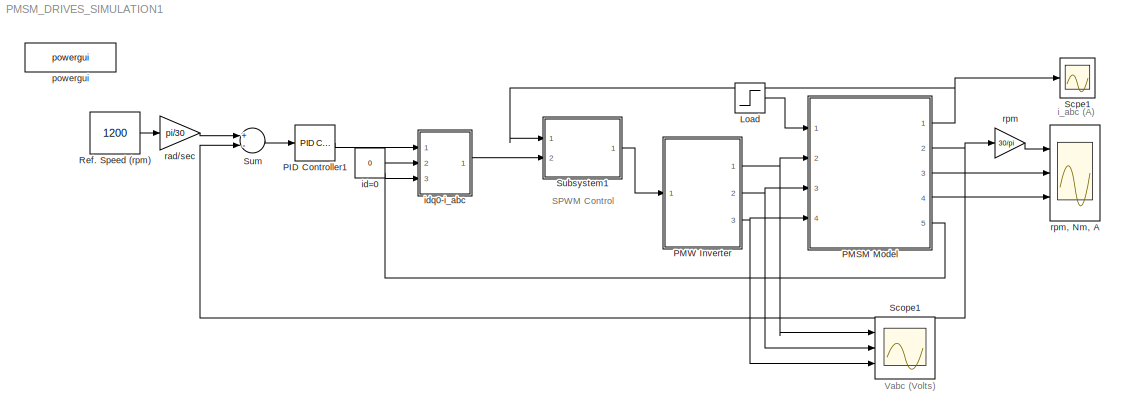
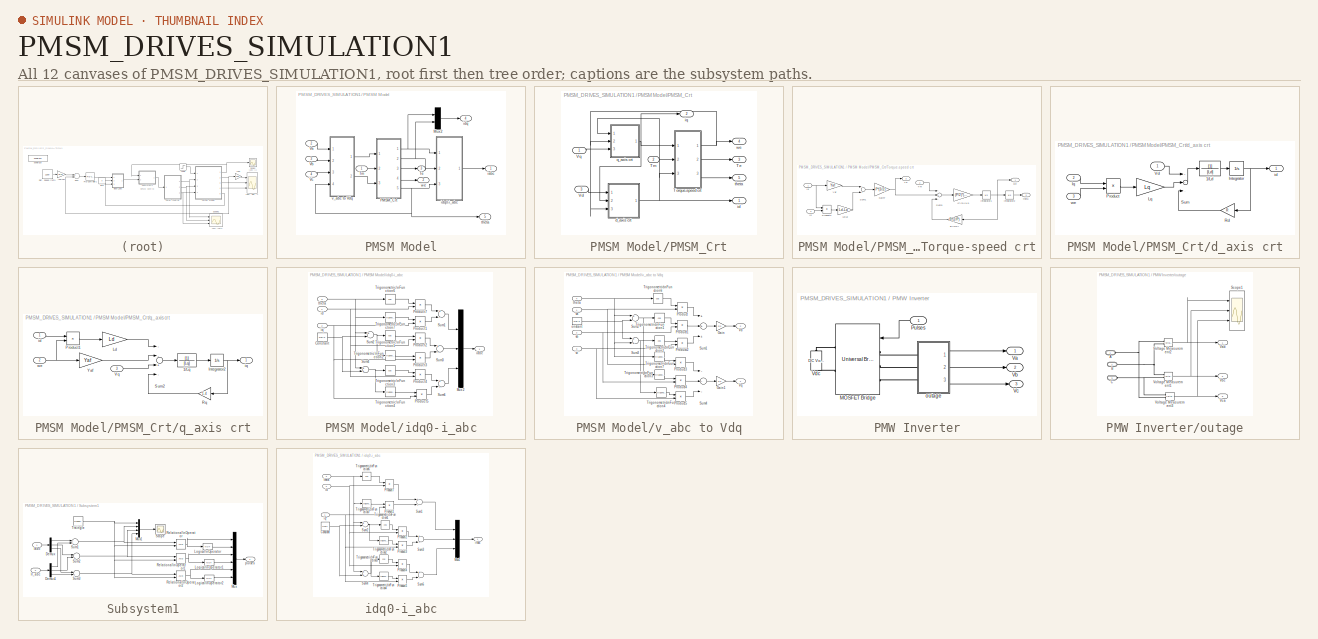
[diagram: thumbnail index - all 12 canvases of the model, root first then tree order]
MODEL PMSM_DRIVES_SIMULATION1
KIND model
BLOCK [Gain]  rpm
  Gain = 30/pi
  MaskEnableString = on
  MaskIconFrame = on
  MaskIconOpaque = on
  MaskIconRotate = none
  MaskIconUnits = autoscale
  MaskPortRotate = default
  MaskPromptString = Mask Parameter 1:
  MaskStyleString = popup(<empty>)
  MaskToolTipString = on
  MaskTunableValueString = on
  MaskValueString = <empty>
  MaskVisibilityString = on
  OutDataTypeStr = Inherit: Inherit via internal rule
  ParamDataTypeStr = Inherit: Inherit via internal rule
  SID = 1
  SaturateOnIntegerOverflow = off
BLOCK [Step] Load
  After = 3
  SID = 2
  SampleTime = 0
  Time = 0
BLOCK [Reference] PID Controller1  REF=simulink/Continuous/PID Controller
  AntiWindupMode = none
  Controller = PI
  D = 0
  DOutDataTypeStr = Inherit: Inherit via internal rule
  DOutMax = []
  DOutMin = []
  DParamDataTypeStr = Inherit: Inherit via internal rule
  DParamMax = []
  DParamMin = []
  ExternalReset = none
  FilterContinuousStateAttributes = ''
  FilterMethod = Forward Euler
  FilterOutDataTypeStr = Inherit: Inherit via internal rule
  FilterOutMax = []
  FilterOutMin = []
  FilterRTWStateStorageClass = Auto
  FilterStateMustResolveToSignalObject = off
  Form = Parallel
  I = 2
  IOutDataTypeStr = Inherit: Inherit via internal rule
  IOutMax = []
  IOutMin = []
  IParamDataTypeStr = Inherit: Inherit via internal rule
  IParamMax = []
  IParamMin = []
  IgnoreLimit = off
  InitialConditionForFilter = 0
  InitialConditionForIntegrator = 0
  InitialConditionSource = internal
  IntegratorContinuousStateAttributes = ''
  IntegratorMethod = Forward Euler
  IntegratorOutDataTypeStr = Inherit: Inherit via internal rule
  IntegratorOutMax = []
  IntegratorOutMin = []
  IntegratorRTWStateStorageClass = Auto
  IntegratorStateMustResolveToSignalObject = off
  Kb = 1
  KbOutDataTypeStr = Inherit: Inherit via internal rule
  KbOutMax = []
  KbOutMin = []
  KbParamDataTypeStr = Inherit: Inherit via internal rule
  KbParamMax = []
  KbParamMin = []
  Kt = 1
  KtOutDataTypeStr = Inherit: Inherit via internal rule
  KtOutMax = []
  KtOutMin = []
  KtParamDataTypeStr = Inherit: Inherit via internal rule
  KtParamMax = []
  KtParamMin = []
  LimitOutput = off
  LinearizeAsGain = off
  LockScale = off
  LowerSaturationLimit = -inf
  N = 100
  NOutDataTypeStr = Inherit: Inherit via internal rule
  NOutMax = []
  NOutMin = []
  NParamDataTypeStr = Inherit: Inherit via internal rule
  NParamMax = []
  NParamMin = []
  P = 10
  POutDataTypeStr = Inherit: Inherit via internal rule
  POutMax = []
  POutMin = []
  PParamDataTypeStr = Inherit: Inherit via internal rule
  PParamMax = []
  PParamMin = []
  Ports = [1, 1]
  RndMeth = Floor
  SID = 479
  SampleTime = 1
  SaturateOnIntegerOverflow = off
  SaturationOutDataTypeStr = Inherit: Same as input
  SaturationOutMax = []
  SaturationOutMin = []
  SourceBlock = simulink/Continuous/PID Controller
  SourceType = PID 1dof
  SumAccumDataTypeStr = Inherit: Inherit via internal rule
  SumDAccumDataTypeStr = Inherit: Inherit via internal rule
  SumDOutDataTypeStr = Inherit: Inherit via internal rule
  SumDOutMax = []
  SumDOutMin = []
  SumI1AccumDataTypeStr = Inherit: Inherit via internal rule
  SumI1OutDataTypeStr = Inherit: Inherit via internal rule
  SumI1OutMax = []
  SumI1OutMin = []
  SumI2AccumDataTypeStr = Inherit: Inherit via internal rule
  SumI2OutDataTypeStr = Inherit: Inherit via internal rule
  SumI2OutMax = []
  SumI2OutMin = []
  SumI3AccumDataTypeStr = Inherit: Inherit via internal rule
  SumI3OutDataTypeStr = Inherit: Inherit via internal rule
  SumI3OutMax = []
  SumI3OutMin = []
  SumOutDataTypeStr = Inherit: Inherit via internal rule
  SumOutMax = []
  SumOutMin = []
  TimeDomain = Continuous-time
  TrackingMode = off
  UpperSaturationLimit = inf
  ZeroCross = on
BLOCK [SubSystem] PMSM Model
  FunctionWithSeparateData = off
  MaskCallbackString = ||||||
  MaskDescription = PMSM drive with constant torque control id=0, at rated speed (60Hz), 30V DC bus voltage..
  MaskEnableString = on,on,on,on,on,on,on
  MaskHideContents = off
  MaskIconFrame = on
  MaskIconOpaque = on
  MaskIconRotate = none
  MaskIconUnits = autoscale
  MaskPortRotate = default
  MaskPromptString = Stator Resistance R (ohm)|Inductance  Ld ( H)|Inductance  Lq  ( H)|Rotor Flux constant  Yaf (V/rad/s)|Moment of inertia  J (kgm2)|Friction Vicious gain B (Nm/ rad/s )|Number of Poles P
  MaskStyleString = edit,edit,edit,edit,edit,edit,edit
  MaskToolTipString = on,on,on,on,on,on,on
  MaskTunableValueString = on,on,on,on,on,on,on
  MaskType = PMSM Model
  MaskValueString = 1.4|0.0066|0.0058|0.1546|0.00176|0.00038818|6
  MaskVariables = R=@1;Ld=@2;Lq=@3;Yaf=@4;J=@5;B=@6;P=@7;
  MaskVisibilityString = on,on,on,on,on,on,on
  MinAlgLoopOccurrences = off
  Opaque = off
  Ports = [4, 5]
  PropExecContextOutsideSubsystem = off
  RTWSystemCode = Auto
  RequestExecContextInheritance = off
  SID = 3
BLOCK [Mux] PMSM Model/Mux2
  Inputs = 2
  Ports = [2, 1]
  SID = 443
BLOCK [SubSystem] PMSM Model/PMSM_Crt
  FunctionWithSeparateData = off
  MaskEnableString = on
  MaskHideContents = off
  MaskIconFrame = on
  MaskIconOpaque = on
  MaskIconRotate = none
  MaskIconUnits = autoscale
  MaskPortRotate = default
  MaskPromptString = Mask Parameter 1:
  MaskStyleString = popup(<empty>)
  MaskToolTipString = on
  MaskTunableValueString = on
  MaskValueString = <empty>
  MaskVisibilityString = on
  MinAlgLoopOccurrences = off
  Opaque = off
  Ports = [3, 5]
  PropExecContextOutsideSubsystem = off
  RTWSystemCode = Auto
  RequestExecContextInheritance = off
  SID = 8
BLOCK [Outport] PMSM Model/PMSM_Crt/Te
  IconDisplay = Port number
  Port = 3
  SID = 53
BLOCK [Inport] PMSM Model/PMSM_Crt/Tm
  IconDisplay = Port number
  Port = 2
  SID = 10
BLOCK [SubSystem] PMSM Model/PMSM_Crt/Torque-speed crt
  FunctionWithSeparateData = off
  MaskEnableString = on
  MaskHideContents = off
  MaskIconFrame = on
  MaskIconOpaque = on
  MaskIconRotate = none
  MaskIconUnits = autoscale
  MaskPortRotate = default
  MaskPromptString = Mask Parameter 1:
  MaskStyleString = popup(<empty>)
  MaskToolTipString = on
  MaskTunableValueString = on
  MaskValueString = <empty>
  MaskVisibilityString = on
  MinAlgLoopOccurrences = off
  Opaque = off
  Ports = [3, 3]
  PropExecContextOutsideSubsystem = off
  RTWSystemCode = Auto
  RequestExecContextInheritance = off
  SID = 317
BLOCK [Gain] PMSM Model/PMSM_Crt/Torque-speed crt/(P//2)*(1//J)
  Gain = (P/2)*(1/J)
  OutDataTypeStr = Inherit: Inherit via internal rule
  ParamDataTypeStr = Inherit: Inherit via internal rule
  SID = 325
  SaturateOnIntegerOverflow = off
BLOCK [Gain] PMSM Model/PMSM_Crt/Torque-speed crt/B*(2//P)
  Gain = B*(2/P)
  OutDataTypeStr = Inherit: Inherit via internal rule
  ParamDataTypeStr = Inherit: Inherit via internal rule
  SID = 321
  SaturateOnIntegerOverflow = off
BLOCK [Gain] PMSM Model/PMSM_Crt/Torque-speed crt/Gain7
  Gain = P*(3/2)
  OutDataTypeStr = Inherit: Inherit via internal rule
  ParamDataTypeStr = Inherit: Inherit via internal rule
  SID = 323
  SaturateOnIntegerOverflow = off
BLOCK [Inport] PMSM Model/PMSM_Crt/Torque-speed crt/Id
  IconDisplay = Port number
  Port = 3
  SID = 320
BLOCK [Integrator] PMSM Model/PMSM_Crt/Torque-speed crt/Integrator1
  Ports = [1, 1]
  SID = 326
BLOCK [Integrator] PMSM Model/PMSM_Crt/Torque-speed crt/Integrator2
  Ports = [1, 1]
  SID = 327
BLOCK [Inport] PMSM Model/PMSM_Crt/Torque-speed crt/Iq
  IconDisplay = Port number
  SID = 318
BLOCK [Gain] PMSM Model/PMSM_Crt/Torque-speed crt/Ld-Lq
  Gain = Ld-Lq
  OutDataTypeStr = Inherit: Inherit via internal rule
  ParamDataTypeStr = Inherit: Inherit via internal rule
  SID = 324
  SaturateOnIntegerOverflow = off
BLOCK [Product] PMSM Model/PMSM_Crt/Torque-speed crt/Product2
  InputSameDT = off
  OutDataTypeStr = Inherit: Inherit via internal rule
  Ports = [2, 1]
  SID = 328
  SaturateOnIntegerOverflow = off
BLOCK [Sum] PMSM Model/PMSM_Crt/Torque-speed crt/Sum1
  InputSameDT = off
  OutDataTypeStr = Inherit: Inherit via internal rule
  Ports = [2, 1]
  SID = 329
  SaturateOnIntegerOverflow = off
BLOCK [Sum] PMSM Model/PMSM_Crt/Torque-speed crt/Sum3
  InputSameDT = off
  Inputs = -+-
  OutDataTypeStr = Inherit: Inherit via internal rule
  Ports = [3, 1]
  SID = 330
  SaturateOnIntegerOverflow = off
BLOCK [Outport] PMSM Model/PMSM_Crt/Torque-speed crt/Te
  IconDisplay = Port number
  Port = 2
  SID = 332
BLOCK [Inport] PMSM Model/PMSM_Crt/Torque-speed crt/Tm
  IconDisplay = Port number
  Port = 2
  SID = 319
BLOCK [Gain] PMSM Model/PMSM_Crt/Torque-speed crt/Yaf
  Gain = Yaf
  OutDataTypeStr = Inherit: Inherit via internal rule
  ParamDataTypeStr = Inherit: Inherit via internal rule
  SID = 322
  SaturateOnIntegerOverflow = off
BLOCK [Outport] PMSM Model/PMSM_Crt/Torque-speed crt/theta 
  IconDisplay = Port number
  Port = 3
  SID = 333
BLOCK [Outport] PMSM Model/PMSM_Crt/Torque-speed crt/we
  IconDisplay = Port number
  SID = 331
BLOCK [Inport] PMSM Model/PMSM_Crt/Vd
  IconDisplay = Port number
  Port = 3
  SID = 11
BLOCK [Inport] PMSM Model/PMSM_Crt/Vq
  IconDisplay = Port number
  SID = 9
BLOCK [SubSystem] PMSM Model/PMSM_Crt/d_axis crt
  FunctionWithSeparateData = off
  MaskEnableString = on
  MaskHideContents = off
  MaskIconFrame = on
  MaskIconOpaque = on
  MaskIconRotate = none
  MaskIconUnits = autoscale
  MaskPortRotate = default
  MaskPromptString = Mask Parameter 1:
  MaskStyleString = popup(<empty>)
  MaskToolTipString = on
  MaskTunableValueString = on
  MaskValueString = <empty>
  MaskVisibilityString = on
  MinAlgLoopOccurrences = off
  Opaque = off
  Ports = [3, 1]
  PropExecContextOutsideSubsystem = off
  RTWSystemCode = Auto
  RequestExecContextInheritance = off
  SID = 12
BLOCK [TransferFcn] PMSM Model/PMSM_Crt/d_axis crt/1//Ld
  Denominator = [Ld]
  SID = 16
BLOCK [Integrator] PMSM Model/PMSM_Crt/d_axis crt/Integrator
  Ports = [1, 1]
  SID = 17
BLOCK [Inport] PMSM Model/PMSM_Crt/d_axis crt/Iq
  IconDisplay = Port number
  Port = 2
  SID = 14
BLOCK [Gain] PMSM Model/PMSM_Crt/d_axis crt/Lq
  Gain = Lq
  OutDataTypeStr = Inherit: Inherit via internal rule
  ParamDataTypeStr = Inherit: Inherit via internal rule
  SID = 18
  SaturateOnIntegerOverflow = off
BLOCK [Product] PMSM Model/PMSM_Crt/d_axis crt/Product
  InputSameDT = off
  OutDataTypeStr = Inherit: Inherit via internal rule
  Ports = [2, 1]
  SID = 19
  SaturateOnIntegerOverflow = off
BLOCK [Gain] PMSM Model/PMSM_Crt/d_axis crt/Rd
  Gain = R
  OutDataTypeStr = Inherit: Inherit via internal rule
  ParamDataTypeStr = Inherit: Inherit via internal rule
  SID = 20
  SaturateOnIntegerOverflow = off
BLOCK [Sum] PMSM Model/PMSM_Crt/d_axis crt/Sum
  InputSameDT = off
  Inputs = ++-
  OutDataTypeStr = Inherit: Inherit via internal rule
  Ports = [3, 1]
  SID = 21
  SaturateOnIntegerOverflow = off
BLOCK [Inport] PMSM Model/PMSM_Crt/d_axis crt/Vd
  IconDisplay = Port number
  SID = 13
BLOCK [Outport] PMSM Model/PMSM_Crt/d_axis crt/id
  IconDisplay = Port number
  SID = 22
BLOCK [Inport] PMSM Model/PMSM_Crt/d_axis crt/we
  IconDisplay = Port number
  Port = 3
  SID = 15
BLOCK [Outport] PMSM Model/PMSM_Crt/id
  IconDisplay = Port number
  SID = 51
BLOCK [Outport] PMSM Model/PMSM_Crt/iq
  IconDisplay = Port number
  Port = 2
  SID = 52
BLOCK [SubSystem] PMSM Model/PMSM_Crt/q_axis crt
  FunctionWithSeparateData = off
  MaskEnableString = on
  MaskHideContents = off
  MaskIconFrame = on
  MaskIconOpaque = on
  MaskIconRotate = none
  MaskIconUnits = autoscale
  MaskPortRotate = default
  MaskPromptString = Mask Parameter 1:
  MaskStyleString = popup(<empty>)
  MaskToolTipString = on
  MaskTunableValueString = on
  MaskValueString = <empty>
  MaskVisibilityString = on
  MinAlgLoopOccurrences = off
  Opaque = off
  Ports = [3, 1]
  PropExecContextOutsideSubsystem = off
  RTWSystemCode = Auto
  RequestExecContextInheritance = off
  SID = 23
BLOCK [TransferFcn] PMSM Model/PMSM_Crt/q_axis crt/1//Lq
  Denominator = [Lq]
  SID = 27
BLOCK [Integrator] PMSM Model/PMSM_Crt/q_axis crt/Integrator2
  Ports = [1, 1]
  SID = 28
BLOCK [Gain] PMSM Model/PMSM_Crt/q_axis crt/Ld
  Gain = Ld
  OutDataTypeStr = Inherit: Inherit via internal rule
  ParamDataTypeStr = Inherit: Inherit via internal rule
  SID = 29
  SaturateOnIntegerOverflow = off
BLOCK [Product] PMSM Model/PMSM_Crt/q_axis crt/Product1
  InputSameDT = off
  OutDataTypeStr = Inherit: Inherit via internal rule
  Ports = [2, 1]
  SID = 30
  SaturateOnIntegerOverflow = off
BLOCK [Gain] PMSM Model/PMSM_Crt/q_axis crt/Rq
  Gain = 1.4
  OutDataTypeStr = Inherit: Inherit via internal rule
  ParamDataTypeStr = Inherit: Inherit via internal rule
  SID = 31
  SaturateOnIntegerOverflow = off
BLOCK [Sum] PMSM Model/PMSM_Crt/q_axis crt/Sum2
  InputSameDT = off
  Inputs = --+-
  OutDataTypeStr = Inherit: Inherit via internal rule
  Ports = [4, 1]
  SID = 32
  SaturateOnIntegerOverflow = off
BLOCK [Inport] PMSM Model/PMSM_Crt/q_axis crt/Vq
  IconDisplay = Port number
  Port = 3
  SID = 26
BLOCK [Gain] PMSM Model/PMSM_Crt/q_axis crt/Yaf
  Gain = Yaf
  OutDataTypeStr = Inherit: Inherit via internal rule
  ParamDataTypeStr = Inherit: Inherit via internal rule
  SID = 33
  SaturateOnIntegerOverflow = off
BLOCK [Inport] PMSM Model/PMSM_Crt/q_axis crt/id
  IconDisplay = Port number
  SID = 24
BLOCK [Outport] PMSM Model/PMSM_Crt/q_axis crt/iq
  IconDisplay = Port number
  SID = 34
BLOCK [Inport] PMSM Model/PMSM_Crt/q_axis crt/we
  IconDisplay = Port number
  Port = 2
  SID = 25
BLOCK [Outport] PMSM Model/PMSM_Crt/theta
  IconDisplay = Port number
  Port = 5
  SID = 55
BLOCK [Outport] PMSM Model/PMSM_Crt/we
  IconDisplay = Port number
  Port = 4
  SID = 54
BLOCK [Outport] PMSM Model/Te
  IconDisplay = Port number
  Port = 3
  SID = 109
BLOCK [Inport] PMSM Model/Tm
  IconDisplay = Port number
  SID = 4
BLOCK [Inport] PMSM Model/Va
  IconDisplay = Port number
  Port = 2
  SID = 5
BLOCK [Inport] PMSM Model/Vb
  IconDisplay = Port number
  Port = 3
  SID = 6
BLOCK [Inport] PMSM Model/Vc
  IconDisplay = Port number
  Port = 4
  SID = 7
BLOCK [Outport] PMSM Model/iabc
  IconDisplay = Port number
  SID = 107
BLOCK [Outport] PMSM Model/idq
  IconDisplay = Port number
  Port = 4
  SID = 444
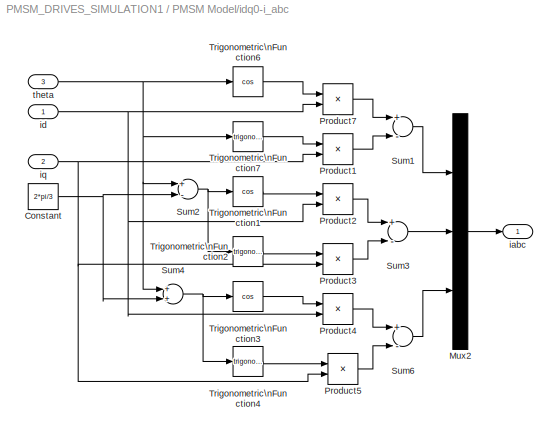
BLOCK [SubSystem] PMSM Model/idq0-i_abc
  FunctionWithSeparateData = off
  MaskEnableString = on
  MaskHideContents = off
  MaskIconFrame = on
  MaskIconOpaque = on
  MaskIconRotate = none
  MaskIconUnits = autoscale
  MaskPortRotate = default
  MaskPromptString = Mask Parameter 1:
  MaskStyleString = popup(<empty>)
  MaskToolTipString = on
  MaskTunableValueString = on
  MaskValueString = <empty>
  MaskVisibilityString = on
  MinAlgLoopOccurrences = off
  Opaque = off
  Ports = [3, 1]
  PropExecContextOutsideSubsystem = off
  RTWSystemCode = Auto
  RequestExecContextInheritance = off
  SID = 56
BLOCK [Constant] PMSM Model/idq0-i_abc/Constant
  SID = 60
  Value = 2*pi/3
BLOCK [Mux] PMSM Model/idq0-i_abc/Mux2
  Inputs = 3
  Ports = [3, 1]
  SID = 61
BLOCK [Product] PMSM Model/idq0-i_abc/Product1
  Ports = [2, 1]
  SID = 62
BLOCK [Product] PMSM Model/idq0-i_abc/Product2
  Ports = [2, 1]
  SID = 63
BLOCK [Product] PMSM Model/idq0-i_abc/Product3
  Ports = [2, 1]
  SID = 64
BLOCK [Product] PMSM Model/idq0-i_abc/Product4
  Ports = [2, 1]
  SID = 65
BLOCK [Product] PMSM Model/idq0-i_abc/Product5
  Ports = [2, 1]
  SID = 66
BLOCK [Product] PMSM Model/idq0-i_abc/Product7
  Ports = [2, 1]
  SID = 67
BLOCK [Sum] PMSM Model/idq0-i_abc/Sum1
  Inputs = +-
  Ports = [2, 1]
  SID = 68
BLOCK [Sum] PMSM Model/idq0-i_abc/Sum2
  Inputs = +-
  Ports = [2, 1]
  SID = 69
BLOCK [Sum] PMSM Model/idq0-i_abc/Sum3
  Inputs = +-
  Ports = [2, 1]
  SID = 70
BLOCK [Sum] PMSM Model/idq0-i_abc/Sum4
  Ports = [2, 1]
  SID = 71
BLOCK [Sum] PMSM Model/idq0-i_abc/Sum6
  Inputs = +-
  Ports = [2, 1]
  SID = 72
BLOCK [Trigonometry] PMSM Model/idq0-i_abc/Trigonometric\nFunction1
  Operator = cos
  Ports = [1, 1]
  SID = 73
BLOCK [Trigonometry] PMSM Model/idq0-i_abc/Trigonometric\nFunction2
  Ports = [1, 1]
  SID = 74
BLOCK [Trigonometry] PMSM Model/idq0-i_abc/Trigonometric\nFunction3
  Operator = cos
  Ports = [1, 1]
  SID = 75
BLOCK [Trigonometry] PMSM Model/idq0-i_abc/Trigonometric\nFunction4
  Ports = [1, 1]
  SID = 76
BLOCK [Trigonometry] PMSM Model/idq0-i_abc/Trigonometric\nFunction6
  Operator = cos
  Ports = [1, 1]
  SID = 77
BLOCK [Trigonometry] PMSM Model/idq0-i_abc/Trigonometric\nFunction7
  Ports = [1, 1]
  SID = 78
BLOCK [Outport] PMSM Model/idq0-i_abc/iabc
  IconDisplay = Port number
  SID = 79
BLOCK [Inport] PMSM Model/idq0-i_abc/id
  IconDisplay = Port number
  SID = 57
BLOCK [Inport] PMSM Model/idq0-i_abc/iq
  IconDisplay = Port number
  Port = 2
  SID = 58
BLOCK [Inport] PMSM Model/idq0-i_abc/theta
  IconDisplay = Port number
  Port = 3
  SID = 59
BLOCK [Outport] PMSM Model/theta
  IconDisplay = Port number
  Port = 5
  SID = 111
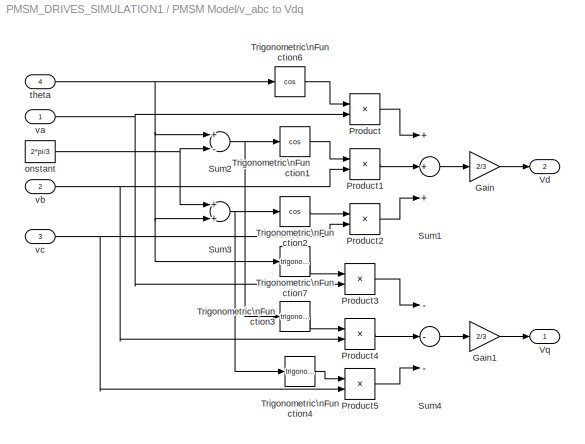
BLOCK [SubSystem] PMSM Model/v_abc to Vdq
  FunctionWithSeparateData = off
  MaskEnableString = on
  MaskHideContents = off
  MaskIconFrame = on
  MaskIconOpaque = on
  MaskIconRotate = none
  MaskIconUnits = autoscale
  MaskPortRotate = default
  MaskPromptString = Mask Parameter 1:
  MaskStyleString = popup(<empty>)
  MaskToolTipString = on
  MaskTunableValueString = on
  MaskValueString = <empty>
  MaskVisibilityString = on
  MinAlgLoopOccurrences = off
  Opaque = off
  Ports = [4, 2]
  PropExecContextOutsideSubsystem = off
  RTWSystemCode = Auto
  RequestExecContextInheritance = off
  SID = 81
BLOCK [Gain] PMSM Model/v_abc to Vdq/Gain
  Gain = 2/3
  OutDataTypeStr = Inherit: Inherit via internal rule
  ParamDataTypeStr = Inherit: Inherit via internal rule
  SID = 86
  SaturateOnIntegerOverflow = off
BLOCK [Gain] PMSM Model/v_abc to Vdq/Gain1
  Gain = 2/3
  OutDataTypeStr = Inherit: Inherit via internal rule
  ParamDataTypeStr = Inherit: Inherit via internal rule
  SID = 87
  SaturateOnIntegerOverflow = off
BLOCK [Product] PMSM Model/v_abc to Vdq/Product
  InputSameDT = off
  OutDataTypeStr = Inherit: Inherit via internal rule
  Ports = [2, 1]
  SID = 88
  SaturateOnIntegerOverflow = off
BLOCK [Product] PMSM Model/v_abc to Vdq/Product1
  InputSameDT = off
  OutDataTypeStr = Inherit: Inherit via internal rule
  Ports = [2, 1]
  SID = 89
  SaturateOnIntegerOverflow = off
BLOCK [Product] PMSM Model/v_abc to Vdq/Product2
  InputSameDT = off
  OutDataTypeStr = Inherit: Inherit via internal rule
  Ports = [2, 1]
  SID = 90
  SaturateOnIntegerOverflow = off
BLOCK [Product] PMSM Model/v_abc to Vdq/Product3
  InputSameDT = off
  OutDataTypeStr = Inherit: Inherit via internal rule
  Ports = [2, 1]
  SID = 91
  SaturateOnIntegerOverflow = off
BLOCK [Product] PMSM Model/v_abc to Vdq/Product4
  InputSameDT = off
  OutDataTypeStr = Inherit: Inherit via internal rule
  Ports = [2, 1]
  SID = 92
  SaturateOnIntegerOverflow = off
BLOCK [Product] PMSM Model/v_abc to Vdq/Product5
  InputSameDT = off
  OutDataTypeStr = Inherit: Inherit via internal rule
  Ports = [2, 1]
  SID = 93
  SaturateOnIntegerOverflow = off
BLOCK [Sum] PMSM Model/v_abc to Vdq/Sum1
  Inputs = +++
  Ports = [3, 1]
  SID = 94
BLOCK [Sum] PMSM Model/v_abc to Vdq/Sum2
  Inputs = +-
  Ports = [2, 1]
  SID = 95
BLOCK [Sum] PMSM Model/v_abc to Vdq/Sum3
  Ports = [2, 1]
  SID = 96
BLOCK [Sum] PMSM Model/v_abc to Vdq/Sum4
  Inputs = ---
  Ports = [3, 1]
  SID = 97
BLOCK [Trigonometry] PMSM Model/v_abc to Vdq/Trigonometric\nFunction1
  Operator = cos
  Ports = [1, 1]
  SID = 98
BLOCK [Trigonometry] PMSM Model/v_abc to Vdq/Trigonometric\nFunction2
  Operator = cos
  Ports = [1, 1]
  SID = 99
BLOCK [Trigonometry] PMSM Model/v_abc to Vdq/Trigonometric\nFunction3
  Ports = [1, 1]
  SID = 100
BLOCK [Trigonometry] PMSM Model/v_abc to Vdq/Trigonometric\nFunction4
  Ports = [1, 1]
  SID = 101
BLOCK [Trigonometry] PMSM Model/v_abc to Vdq/Trigonometric\nFunction6
  Operator = cos
  Ports = [1, 1]
  SID = 102
BLOCK [Trigonometry] PMSM Model/v_abc to Vdq/Trigonometric\nFunction7
  Ports = [1, 1]
  SID = 103
BLOCK [Outport] PMSM Model/v_abc to Vdq/Vd
  IconDisplay = Port number
  Port = 2
  SID = 106
BLOCK [Outport] PMSM Model/v_abc to Vdq/Vq
  IconDisplay = Port number
  SID = 105
BLOCK [Constant] PMSM Model/v_abc to Vdq/onstant
  SID = 104
  Value = 2*pi/3
BLOCK [Inport] PMSM Model/v_abc to Vdq/theta
  IconDisplay = Port number
  Port = 4
  SID = 85
BLOCK [Inport] PMSM Model/v_abc to Vdq/va
  IconDisplay = Port number
  SID = 82
BLOCK [Inport] PMSM Model/v_abc to Vdq/vb
  IconDisplay = Port number
  Port = 2
  SID = 83
BLOCK [Inport] PMSM Model/v_abc to Vdq/vc
  IconDisplay = Port number
  Port = 3
  SID = 84
BLOCK [Outport] PMSM Model/we
  IconDisplay = Port number
  Port = 2
  SID = 108
BLOCK [SubSystem] PMW Inverter
  FunctionWithSeparateData = off
  MaskEnableString = on
  MaskHideContents = off
  MaskIconFrame = on
  MaskIconOpaque = on
  MaskIconRotate = none
  MaskIconUnits = autoscale
  MaskPortRotate = default
  MaskPromptString = DC Bus Voltage ( Volts)
  MaskStyleString = edit
  MaskToolTipString = on
  MaskTunableValueString = on
  MaskType = MOSFET/DIODE 3-Phase Bridge
  MaskValueString = 30
  MaskVariables = Vdc=@1;
  MaskVisibilityString = on
  MinAlgLoopOccurrences = off
  Opaque = off
  Ports = [1, 3]
  PropExecContextOutsideSubsystem = off
  RTWSystemCode = Auto
  RequestExecContextInheritance = off
  SID = 438
BLOCK [Reference] PMW Inverter/MOSFET Bridge  REF=powerlib/Power\nElectronics/Universal Bridge
  Arms = 3
  Device = MOSFET / Diodes
  ForwardVoltage = 0
  ForwardVoltages = [  0  0  ]
  GTOparameters = [ 10e-6 , 20e-6 ]
  IGBTparameters = [ 1e-6 , 2e-6 ]
  Lon = 0
  Measurements = None
  Measurements_2 = None
  Ports = [1, 0, 0, 0, 0, 3, 2]
  Ron = 1e-3
  SID = 419
  SnubberCapacitance = inf
  SnubberResistance = 1e5
  SourceBlock = powerlib/Power\nElectronics/Universal Bridge
  SourceType = Universal Bridge
  converterType = Rectifier
BLOCK [Inport] PMW Inverter/Pulses
  IconDisplay = Port number
  SID = 439
BLOCK [Outport] PMW Inverter/Va
  IconDisplay = Port number
  SID = 440
BLOCK [Outport] PMW Inverter/Vb
  IconDisplay = Port number
  Port = 2
  SID = 441
BLOCK [Outport] PMW Inverter/Vc
  IconDisplay = Port number
  Port = 3
  SID = 442
BLOCK [Reference] PMW Inverter/Vdc  REF=powerlib/Electrical\nSources/DC Voltage Source
  Amplitude = Vdc
  Measurements = None
  Ports = [0, 0, 0, 0, 0, 1, 1]
  SID = 420
  SourceBlock = powerlib/Electrical\nSources/DC Voltage Source
  SourceType = DC Voltage Source
BLOCK [SubSystem] PMW Inverter/outage
  FunctionWithSeparateData = off
  MaskHideContents = off
  MinAlgLoopOccurrences = off
  Opaque = off
  Ports = [0, 3, 0, 0, 0, 3]
  PropExecContextOutsideSubsystem = off
  RTWSystemCode = Auto
  RequestExecContextInheritance = off
  SID = 421
BLOCK [PMIOPort] PMW Inverter/outage/A
  Port = 1
  SID = 426
  Side = Left
BLOCK [PMIOPort] PMW Inverter/outage/B
  Port = 2
  SID = 427
  Side = Left
BLOCK [PMIOPort] PMW Inverter/outage/C
  Port = 3
  SID = 428
  Side = Left
BLOCK [Scope] PMW Inverter/outage/Scope1
  DataFormat = StructureWithTime
  Floating = off
  NumInputPorts = 3
  Ports = [3]
  SID = 422
  SampleTime = 0
  YMax = 5~5~5
  YMin = -5~-5~-5
BLOCK [Outport] PMW Inverter/outage/Vab
  IconDisplay = Port number
  SID = 429
BLOCK [Outport] PMW Inverter/outage/Vbc
  IconDisplay = Port number
  Port = 2
  SID = 430
BLOCK [Outport] PMW Inverter/outage/Vca
  IconDisplay = Port number
  Port = 3
  SID = 431
BLOCK [Reference] PMW Inverter/outage/Voltage Measurement1  REF=powerlib/Measurements/Voltage Measurement
  OutputType = Complex
  PSBequivalent = 0
  PhasorSimulation = off
  Ports = [0, 1, 0, 0, 0, 2]
  SID = 423
  SourceBlock = powerlib/Measurements/Voltage Measurement
  SourceType = Voltage Measurement
BLOCK [Reference] PMW Inverter/outage/Voltage Measurement2  REF=powerlib/Measurements/Voltage Measurement
  OutputType = Complex
  PSBequivalent = 0
  PhasorSimulation = off
  Ports = [0, 1, 0, 0, 0, 2]
  SID = 424
  SourceBlock = powerlib/Measurements/Voltage Measurement
  SourceType = Voltage Measurement
BLOCK [Reference] PMW Inverter/outage/Voltage Measurement3  REF=powerlib/Measurements/Voltage Measurement
  OutputType = Complex
  PSBequivalent = 0
  PhasorSimulation = off
  Ports = [0, 1, 0, 0, 0, 2]
  SID = 425
  SourceBlock = powerlib/Measurements/Voltage Measurement
  SourceType = Voltage Measurement
BLOCK [Constant] Ref. Speed (rpm)
  SID = 194
  Value = 1200
BLOCK [Scope] Scope1
  DataFormat = StructureWithTime
  Floating = off
  NumInputPorts = 3
  Ports = [3]
  SID = 480
  SampleTime = 0
  SaveName = ScopeData1
  YMax = 5~5~5
  YMin = -5~-5~-5
BLOCK [Scope] Scpe1
  DataFormat = StructureWithTime
  Floating = off
  LimitDataPoints = off
  NumInputPorts = 1
  Ports = [1]
  SID = 195
  SampleTime = 0
  SaveName = ScopeData6
  TimeRange = 1
  YMax = 10
  YMin = -10
BLOCK [SubSystem] Subsystem1
  FunctionWithSeparateData = off
  MaskHideContents = off
  MinAlgLoopOccurrences = off
  Opaque = off
  Ports = [2, 1]
  PropExecContextOutsideSubsystem = off
  RTWSystemCode = Auto
  RequestExecContextInheritance = off
  SID = 448
BLOCK [Demux] Subsystem1/Demux
  DisplayOption = bar
  Outputs = 3
  Ports = [1, 3]
  SID = 451
BLOCK [Demux] Subsystem1/Demux1
  DisplayOption = bar
  Outputs = 3
  Ports = [1, 3]
  SID = 452
BLOCK [Inport] Subsystem1/Iabc
  IconDisplay = Port number
  SID = 449
BLOCK [Inport] Subsystem1/Ir_abc
  IconDisplay = Port number
  Port = 2
  SID = 450
BLOCK [Logic] Subsystem1/Logical\nOperator
  Operator = NOT
  Ports = [1, 1]
  SID = 453
BLOCK [Logic] Subsystem1/Logical\nOperator1
  Operator = NOT
  Ports = [1, 1]
  SID = 454
BLOCK [Logic] Subsystem1/Logical\nOperator2
  Operator = NOT
  Ports = [1, 1]
  SID = 455
BLOCK [Mux] Subsystem1/Mux
  Inputs = 6
  Ports = [6, 1]
  SID = 456
BLOCK [Mux] Subsystem1/Mux1
  DisplayOption = bar
  Ports = [4, 1]
  SID = 457
BLOCK [RelationalOperator] Subsystem1/Relational\nOperator
  InputSameDT = off
  OutDataTypeStr = boolean
  Ports = [2, 1]
  SID = 458
BLOCK [RelationalOperator] Subsystem1/Relational\nOperator1
  InputSameDT = off
  OutDataTypeStr = boolean
  Ports = [2, 1]
  SID = 459
BLOCK [RelationalOperator] Subsystem1/Relational\nOperator2
  InputSameDT = off
  OutDataTypeStr = boolean
  Ports = [2, 1]
  SID = 460
BLOCK [Scope] Subsystem1/Scope
  DataFormat = StructureWithTime
  Floating = off
  NumInputPorts = 1
  Ports = [1]
  SID = 461
  SampleTime = 0
  SaveName = ScopeData11
  YMax = 100
  YMin = -100
BLOCK [Sum] Subsystem1/Sum1
  Inputs = -+
  Ports = [2, 1]
  SID = 462
BLOCK [Sum] Subsystem1/Sum2
  Inputs = -+
  Ports = [2, 1]
  SID = 463
BLOCK [Sum] Subsystem1/Sum3
  Inputs = -+
  Ports = [2, 1]
  SID = 464
BLOCK [Reference] Subsystem1/Traingle  REF=simulink/Sources/Repeating\nSequence
  Ports = [0, 1]
  SID = 465
  SourceBlock = simulink/Sources/Repeating\nSequence
  SourceType = Repeating table
  rep_seq_t = [0 1/6000/4 3/6000/4 1/6000]
  rep_seq_y = [0 -30 30 0]
BLOCK [Outport] Subsystem1/pulses
  IconDisplay = Port number
  SID = 466
BLOCK [Sum] Sum
  Inputs = +-
  Ports = [2, 1]
  SID = 196
BLOCK [Constant] id=0
  SID = 197
  Value = 0
BLOCK [SubSystem] idq0-i_abc
  FunctionWithSeparateData = off
  MaskEnableString = on
  MaskHideContents = off
  MaskIconFrame = on
  MaskIconOpaque = on
  MaskIconRotate = none
  MaskIconUnits = autoscale
  MaskPortRotate = default
  MaskPromptString = Mask Parameter 1:
  MaskStyleString = popup(<empty>)
  MaskToolTipString = on
  MaskTunableValueString = on
  MaskType = Reference current generator
  MaskValueString = <empty>
  MaskVisibilityString = on
  MinAlgLoopOccurrences = off
  Opaque = off
  Ports = [3, 1]
  PropExecContextOutsideSubsystem = off
  RTWSystemCode = Auto
  RequestExecContextInheritance = off
  SID = 198
BLOCK [Constant] idq0-i_abc/Constant
  SID = 202
  Value = 2*pi/3
BLOCK [Mux] idq0-i_abc/Mux1
  Inputs = 3
  Ports = [3, 1]
  SID = 203
BLOCK [Product] idq0-i_abc/Product1
  Ports = [2, 1]
  SID = 204
BLOCK [Product] idq0-i_abc/Product2
  Ports = [2, 1]
  SID = 205
BLOCK [Product] idq0-i_abc/Product3
  Ports = [2, 1]
  SID = 206
BLOCK [Product] idq0-i_abc/Product4
  Ports = [2, 1]
  SID = 207
BLOCK [Product] idq0-i_abc/Product5
  Ports = [2, 1]
  SID = 208
BLOCK [Product] idq0-i_abc/Product7
  Ports = [2, 1]
  SID = 209
BLOCK [Sum] idq0-i_abc/Sum1
  Inputs = +-
  Ports = [2, 1]
  SID = 210
BLOCK [Sum] idq0-i_abc/Sum2
  Inputs = +-
  Ports = [2, 1]
  SID = 211
BLOCK [Sum] idq0-i_abc/Sum3
  Inputs = +-
  Ports = [2, 1]
  SID = 212
BLOCK [Sum] idq0-i_abc/Sum4
  Ports = [2, 1]
  SID = 213
BLOCK [Sum] idq0-i_abc/Sum6
  Inputs = +-
  Ports = [2, 1]
  SID = 214
BLOCK [Trigonometry] idq0-i_abc/Trigonometric\nFunction1
  Operator = cos
  Ports = [1, 1]
  SID = 215
BLOCK [Trigonometry] idq0-i_abc/Trigonometric\nFunction2
  Ports = [1, 1]
  SID = 216
BLOCK [Trigonometry] idq0-i_abc/Trigonometric\nFunction3
  Operator = cos
  Ports = [1, 1]
  SID = 217
BLOCK [Trigonometry] idq0-i_abc/Trigonometric\nFunction4
  Ports = [1, 1]
  SID = 218
BLOCK [Trigonometry] idq0-i_abc/Trigonometric\nFunction6
  Operator = cos
  Ports = [1, 1]
  SID = 219
BLOCK [Trigonometry] idq0-i_abc/Trigonometric\nFunction7
  Ports = [1, 1]
  SID = 220
BLOCK [Inport] idq0-i_abc/id
  IconDisplay = Port number
  Port = 2
  SID = 200
BLOCK [Inport] idq0-i_abc/iq*
  IconDisplay = Port number
  SID = 199
BLOCK [Outport] idq0-i_abc/irabc
  IconDisplay = Port number
  SID = 221
BLOCK [Inport] idq0-i_abc/theta
  IconDisplay = Port number
  Port = 3
  SID = 201
BLOCK [Reference] powergui  REF=powerlib/powergui
  DisableRonSwitches = off
  DisableSnubberDevices = off
  DisableVfSwitches = off
  DisplayEquations = off
  DisplayStyle = off
  EnableUseOfTLC = off
  ErrMax = 1e-4
  Frange = logspace(0,3,50)
  FreqAxis = off
  FunctionMessages = off
  HookPort = off
  Interpol = off
  Iterations = 50
  MaxFrequency = 1000
  Pbase = 100e6
  Ports = []
  Priority = 2
  ResistiveCurrentMeasurement = off
  RestoreLinks = warning
  RmsSteady = 1
  SID = 232
  SPID = off
  SampleTime = 0
  ShowGrid = off
  SolverType = Tustin
  SourceBlock = powerlib/powergui
  SourceType = PSB option menu block
  StartTime = 0.0
  SwTol = 0
  Ts = 0
  UnitsV = kV
  UnitsW = MW
  UserData = DataTag0
  UserDataPersistent = on
  Xlog = off
  Ylog = off
  ZoomFFT = on
  cycles = 1
  display = off
  echomessages = off
  frequency = 60
  frequencyindice = 0
  frequencyindicesteady = 1
  fundamental = 60
  methode = off
  save = off
  variable = ZData
  x0status = blocks
BLOCK [Gain] rad//sec
  Gain = pi/30
  MaskEnableString = on
  MaskIconFrame = on
  MaskIconOpaque = on
  MaskIconRotate = none
  MaskIconUnits = autoscale
  MaskPortRotate = default
  MaskPromptString = Mask Parameter 1:
  MaskStyleString = popup(<empty>)
  MaskToolTipString = on
  MaskTunableValueString = on
  MaskValueString = <empty>
  MaskVisibilityString = on
  OutDataTypeStr = Inherit: Inherit via internal rule
  ParamDataTypeStr = Inherit: Inherit via internal rule
  SID = 230
  SaturateOnIntegerOverflow = off
BLOCK [Scope] rpm, Nm, A
  DataFormat = StructureWithTime
  Floating = off
  LimitDataPoints = off
  NumInputPorts = 3
  Ports = [3]
  SID = 231
  SampleTime = 0
  SaveName = ScopeData3
  TimeRange = 0.1
  YMax = 1240~12.5~10
  YMin = 1150~-5~-10
  ZoomMode = yonly
ANNOTATION (root): SPWM Control
ANNOTATION (root): Vabc (Volts)
ANNOTATION (root): i_abc (A)
LINE  rpm:1 -> rpm, Nm, A:1
LINE Load:1 -> PMSM Model:1
LINE PID Controller1:1 -> idq0-i_abc:1
LINE PMSM Model/Mux2:1 -> PMSM Model/idq:1
LINE PMSM Model/PMSM_Crt/Tm:1 -> PMSM Model/PMSM_Crt/Torque-speed crt:2
LINE PMSM Model/PMSM_Crt/Torque-speed crt/(P//2)*(1//J):1 -> PMSM Model/PMSM_Crt/Torque-speed crt/Integrator1:1
LINE PMSM Model/PMSM_Crt/Torque-speed crt/B*(2//P):1 -> PMSM Model/PMSM_Crt/Torque-speed crt/Sum3:3
NET PMSM Model/PMSM_Crt/Torque-speed crt/Gain7:1 -> PMSM Model/PMSM_Crt/Torque-speed crt/Sum3:2, PMSM Model/PMSM_Crt/Torque-speed crt/Te:1
LINE PMSM Model/PMSM_Crt/Torque-speed crt/Id:1 -> PMSM Model/PMSM_Crt/Torque-speed crt/Product2:2
NET PMSM Model/PMSM_Crt/Torque-speed crt/Integrator1:1 -> PMSM Model/PMSM_Crt/Torque-speed crt/B*(2//P):1, PMSM Model/PMSM_Crt/Torque-speed crt/Integrator2:1, PMSM Model/PMSM_Crt/Torque-speed crt/we:1
LINE PMSM Model/PMSM_Crt/Torque-speed crt/Integrator2:1 -> PMSM Model/PMSM_Crt/Torque-speed crt/theta :1
NET PMSM Model/PMSM_Crt/Torque-speed crt/Iq:1 -> PMSM Model/PMSM_Crt/Torque-speed crt/Product2:1, PMSM Model/PMSM_Crt/Torque-speed crt/Yaf:1
LINE PMSM Model/PMSM_Crt/Torque-speed crt/Ld-Lq:1 -> PMSM Model/PMSM_Crt/Torque-speed crt/Sum1:2
LINE PMSM Model/PMSM_Crt/Torque-speed crt/Product2:1 -> PMSM Model/PMSM_Crt/Torque-speed crt/Ld-Lq:1
LINE PMSM Model/PMSM_Crt/Torque-speed crt/Sum1:1 -> PMSM Model/PMSM_Crt/Torque-speed crt/Gain7:1
LINE PMSM Model/PMSM_Crt/Torque-speed crt/Sum3:1 -> PMSM Model/PMSM_Crt/Torque-speed crt/(P//2)*(1//J):1
LINE PMSM Model/PMSM_Crt/Torque-speed crt/Tm:1 -> PMSM Model/PMSM_Crt/Torque-speed crt/Sum3:1
LINE PMSM Model/PMSM_Crt/Torque-speed crt/Yaf:1 -> PMSM Model/PMSM_Crt/Torque-speed crt/Sum1:1
NET PMSM Model/PMSM_Crt/Torque-speed crt:1 -> PMSM Model/PMSM_Crt/d_axis crt:3, PMSM Model/PMSM_Crt/q_axis crt:2, PMSM Model/PMSM_Crt/we:1
LINE PMSM Model/PMSM_Crt/Torque-speed crt:2 -> PMSM Model/PMSM_Crt/Te:1
LINE PMSM Model/PMSM_Crt/Torque-speed crt:3 -> PMSM Model/PMSM_Crt/theta:1
LINE PMSM Model/PMSM_Crt/Vd:1 -> PMSM Model/PMSM_Crt/d_axis crt:1
LINE PMSM Model/PMSM_Crt/Vq:1 -> PMSM Model/PMSM_Crt/q_axis crt:3
LINE PMSM Model/PMSM_Crt/d_axis crt/1//Ld:1 -> PMSM Model/PMSM_Crt/d_axis crt/Integrator:1
NET PMSM Model/PMSM_Crt/d_axis crt/Integrator:1 -> PMSM Model/PMSM_Crt/d_axis crt/Rd:1, PMSM Model/PMSM_Crt/d_axis crt/id:1
LINE PMSM Model/PMSM_Crt/d_axis crt/Iq:1 -> PMSM Model/PMSM_Crt/d_axis crt/Product:1
LINE PMSM Model/PMSM_Crt/d_axis crt/Lq:1 -> PMSM Model/PMSM_Crt/d_axis crt/Sum:2
LINE PMSM Model/PMSM_Crt/d_axis crt/Product:1 -> PMSM Model/PMSM_Crt/d_axis crt/Lq:1
LINE PMSM Model/PMSM_Crt/d_axis crt/Rd:1 -> PMSM Model/PMSM_Crt/d_axis crt/Sum:3
LINE PMSM Model/PMSM_Crt/d_axis crt/Sum:1 -> PMSM Model/PMSM_Crt/d_axis crt/1//Ld:1
LINE PMSM Model/PMSM_Crt/d_axis crt/Vd:1 -> PMSM Model/PMSM_Crt/d_axis crt/Sum:1
LINE PMSM Model/PMSM_Crt/d_axis crt/we:1 -> PMSM Model/PMSM_Crt/d_axis crt/Product:2
NET PMSM Model/PMSM_Crt/d_axis crt:1 -> PMSM Model/PMSM_Crt/Torque-speed crt:3, PMSM Model/PMSM_Crt/id:1, PMSM Model/PMSM_Crt/q_axis crt:1
LINE PMSM Model/PMSM_Crt/q_axis crt/1//Lq:1 -> PMSM Model/PMSM_Crt/q_axis crt/Integrator2:1
NET PMSM Model/PMSM_Crt/q_axis crt/Integrator2:1 -> PMSM Model/PMSM_Crt/q_axis crt/Rq:1, PMSM Model/PMSM_Crt/q_axis crt/iq:1
LINE PMSM Model/PMSM_Crt/q_axis crt/Ld:1 -> PMSM Model/PMSM_Crt/q_axis crt/Sum2:1
LINE PMSM Model/PMSM_Crt/q_axis crt/Product1:1 -> PMSM Model/PMSM_Crt/q_axis crt/Ld:1
LINE PMSM Model/PMSM_Crt/q_axis crt/Rq:1 -> PMSM Model/PMSM_Crt/q_axis crt/Sum2:4
LINE PMSM Model/PMSM_Crt/q_axis crt/Sum2:1 -> PMSM Model/PMSM_Crt/q_axis crt/1//Lq:1
LINE PMSM Model/PMSM_Crt/q_axis crt/Vq:1 -> PMSM Model/PMSM_Crt/q_axis crt/Sum2:3
LINE PMSM Model/PMSM_Crt/q_axis crt/Yaf:1 -> PMSM Model/PMSM_Crt/q_axis crt/Sum2:2
LINE PMSM Model/PMSM_Crt/q_axis crt/id:1 -> PMSM Model/PMSM_Crt/q_axis crt/Product1:1
NET PMSM Model/PMSM_Crt/q_axis crt/we:1 -> PMSM Model/PMSM_Crt/q_axis crt/Product1:2, PMSM Model/PMSM_Crt/q_axis crt/Yaf:1
NET PMSM Model/PMSM_Crt/q_axis crt:1 -> PMSM Model/PMSM_Crt/Torque-speed crt:1, PMSM Model/PMSM_Crt/d_axis crt:2, PMSM Model/PMSM_Crt/iq:1
NET PMSM Model/PMSM_Crt:1 -> PMSM Model/Mux2:1, PMSM Model/idq0-i_abc:1
NET PMSM Model/PMSM_Crt:2 -> PMSM Model/Mux2:2, PMSM Model/idq0-i_abc:2
LINE PMSM Model/PMSM_Crt:3 -> PMSM Model/Te:1
LINE PMSM Model/PMSM_Crt:4 -> PMSM Model/we:1
NET PMSM Model/PMSM_Crt:5 -> PMSM Model/idq0-i_abc:3, PMSM Model/theta:1, PMSM Model/v_abc to Vdq:4
LINE PMSM Model/Tm:1 -> PMSM Model/PMSM_Crt:2
LINE PMSM Model/Va:1 -> PMSM Model/v_abc to Vdq:1
LINE PMSM Model/Vb:1 -> PMSM Model/v_abc to Vdq:2
LINE PMSM Model/Vc:1 -> PMSM Model/v_abc to Vdq:3
NET PMSM Model/idq0-i_abc/Constant:1 -> PMSM Model/idq0-i_abc/Sum2:2, PMSM Model/idq0-i_abc/Sum4:2
LINE PMSM Model/idq0-i_abc/Mux2:1 -> PMSM Model/idq0-i_abc/iabc:1
LINE PMSM Model/idq0-i_abc/Product1:1 -> PMSM Model/idq0-i_abc/Sum1:2
LINE PMSM Model/idq0-i_abc/Product2:1 -> PMSM Model/idq0-i_abc/Sum3:1
LINE PMSM Model/idq0-i_abc/Product3:1 -> PMSM Model/idq0-i_abc/Sum3:2
LINE PMSM Model/idq0-i_abc/Product4:1 -> PMSM Model/idq0-i_abc/Sum6:1
LINE PMSM Model/idq0-i_abc/Product5:1 -> PMSM Model/idq0-i_abc/Sum6:2
LINE PMSM Model/idq0-i_abc/Product7:1 -> PMSM Model/idq0-i_abc/Sum1:1
LINE PMSM Model/idq0-i_abc/Sum1:1 -> PMSM Model/idq0-i_abc/Mux2:1
NET PMSM Model/idq0-i_abc/Sum2:1 -> PMSM Model/idq0-i_abc/Trigonometric\nFunction1:1, PMSM Model/idq0-i_abc/Trigonometric\nFunction2:1
LINE PMSM Model/idq0-i_abc/Sum3:1 -> PMSM Model/idq0-i_abc/Mux2:2
NET PMSM Model/idq0-i_abc/Sum4:1 -> PMSM Model/idq0-i_abc/Trigonometric\nFunction3:1, PMSM Model/idq0-i_abc/Trigonometric\nFunction4:1
LINE PMSM Model/idq0-i_abc/Sum6:1 -> PMSM Model/idq0-i_abc/Mux2:3
LINE PMSM Model/idq0-i_abc/Trigonometric\nFunction1:1 -> PMSM Model/idq0-i_abc/Product2:1
LINE PMSM Model/idq0-i_abc/Trigonometric\nFunction2:1 -> PMSM Model/idq0-i_abc/Product3:1
LINE PMSM Model/idq0-i_abc/Trigonometric\nFunction3:1 -> PMSM Model/idq0-i_abc/Product4:1
LINE PMSM Model/idq0-i_abc/Trigonometric\nFunction4:1 -> PMSM Model/idq0-i_abc/Product5:1
LINE PMSM Model/idq0-i_abc/Trigonometric\nFunction6:1 -> PMSM Model/idq0-i_abc/Product7:1
LINE PMSM Model/idq0-i_abc/Trigonometric\nFunction7:1 -> PMSM Model/idq0-i_abc/Product1:1
NET PMSM Model/idq0-i_abc/id:1 -> PMSM Model/idq0-i_abc/Product2:2, PMSM Model/idq0-i_abc/Product4:2, PMSM Model/idq0-i_abc/Product7:2
NET PMSM Model/idq0-i_abc/iq:1 -> PMSM Model/idq0-i_abc/Product1:2, PMSM Model/idq0-i_abc/Product3:2, PMSM Model/idq0-i_abc/Product5:2
NET PMSM Model/idq0-i_abc/theta:1 -> PMSM Model/idq0-i_abc/Sum2:1, PMSM Model/idq0-i_abc/Sum4:1, PMSM Model/idq0-i_abc/Trigonometric\nFunction6:1, PMSM Model/idq0-i_abc/Trigonometric\nFunction7:1
LINE PMSM Model/idq0-i_abc:1 -> PMSM Model/iabc:1
LINE PMSM Model/v_abc to Vdq/Gain1:1 -> PMSM Model/v_abc to Vdq/Vq:1
LINE PMSM Model/v_abc to Vdq/Gain:1 -> PMSM Model/v_abc to Vdq/Vd:1
LINE PMSM Model/v_abc to Vdq/Product1:1 -> PMSM Model/v_abc to Vdq/Sum1:2
LINE PMSM Model/v_abc to Vdq/Product2:1 -> PMSM Model/v_abc to Vdq/Sum1:3
LINE PMSM Model/v_abc to Vdq/Product3:1 -> PMSM Model/v_abc to Vdq/Sum4:1
LINE PMSM Model/v_abc to Vdq/Product4:1 -> PMSM Model/v_abc to Vdq/Sum4:2
LINE PMSM Model/v_abc to Vdq/Product5:1 -> PMSM Model/v_abc to Vdq/Sum4:3
LINE PMSM Model/v_abc to Vdq/Product:1 -> PMSM Model/v_abc to Vdq/Sum1:1
LINE PMSM Model/v_abc to Vdq/Sum1:1 -> PMSM Model/v_abc to Vdq/Gain:1
NET PMSM Model/v_abc to Vdq/Sum2:1 -> PMSM Model/v_abc to Vdq/Trigonometric\nFunction1:1, PMSM Model/v_abc to Vdq/Trigonometric\nFunction3:1
NET PMSM Model/v_abc to Vdq/Sum3:1 -> PMSM Model/v_abc to Vdq/Trigonometric\nFunction2:1, PMSM Model/v_abc to Vdq/Trigonometric\nFunction4:1
LINE PMSM Model/v_abc to Vdq/Sum4:1 -> PMSM Model/v_abc to Vdq/Gain1:1
LINE PMSM Model/v_abc to Vdq/Trigonometric\nFunction1:1 -> PMSM Model/v_abc to Vdq/Product1:1
LINE PMSM Model/v_abc to Vdq/Trigonometric\nFunction2:1 -> PMSM Model/v_abc to Vdq/Product2:1
LINE PMSM Model/v_abc to Vdq/Trigonometric\nFunction3:1 -> PMSM Model/v_abc to Vdq/Product4:1
LINE PMSM Model/v_abc to Vdq/Trigonometric\nFunction4:1 -> PMSM Model/v_abc to Vdq/Product5:1
LINE PMSM Model/v_abc to Vdq/Trigonometric\nFunction6:1 -> PMSM Model/v_abc to Vdq/Product:1
LINE PMSM Model/v_abc to Vdq/Trigonometric\nFunction7:1 -> PMSM Model/v_abc to Vdq/Product3:1
NET PMSM Model/v_abc to Vdq/onstant:1 -> PMSM Model/v_abc to Vdq/Sum2:2, PMSM Model/v_abc to Vdq/Sum3:1
NET PMSM Model/v_abc to Vdq/theta:1 -> PMSM Model/v_abc to Vdq/Sum2:1, PMSM Model/v_abc to Vdq/Sum3:2, PMSM Model/v_abc to Vdq/Trigonometric\nFunction6:1, PMSM Model/v_abc to Vdq/Trigonometric\nFunction7:1
NET PMSM Model/v_abc to Vdq/va:1 -> PMSM Model/v_abc to Vdq/Product3:2, PMSM Model/v_abc to Vdq/Product:2
NET PMSM Model/v_abc to Vdq/vb:1 -> PMSM Model/v_abc to Vdq/Product1:2, PMSM Model/v_abc to Vdq/Product4:2
NET PMSM Model/v_abc to Vdq/vc:1 -> PMSM Model/v_abc to Vdq/Product2:2, PMSM Model/v_abc to Vdq/Product5:2
LINE PMSM Model/v_abc to Vdq:1 -> PMSM Model/PMSM_Crt:1
LINE PMSM Model/v_abc to Vdq:2 -> PMSM Model/PMSM_Crt:3
NET PMSM Model:1 -> Scpe1:1, Subsystem1:1
NET PMSM Model:2 ->  rpm:1, Sum:2
LINE PMSM Model:3 -> rpm, Nm, A:2
LINE PMSM Model:4 -> rpm, Nm, A:3
LINE PMSM Model:5 -> idq0-i_abc:3
LINE PMW Inverter/Pulses:1 -> PMW Inverter/MOSFET Bridge:1
NET PMW Inverter/outage/Voltage Measurement1:1 -> PMW Inverter/outage/Scope1:2, PMW Inverter/outage/Vbc:1
NET PMW Inverter/outage/Voltage Measurement2:1 -> PMW Inverter/outage/Scope1:1, PMW Inverter/outage/Vab:1
NET PMW Inverter/outage/Voltage Measurement3:1 -> PMW Inverter/outage/Scope1:3, PMW Inverter/outage/Vca:1
LINE PMW Inverter/outage:1 -> PMW Inverter/Va:1
LINE PMW Inverter/outage:2 -> PMW Inverter/Vb:1
LINE PMW Inverter/outage:3 -> PMW Inverter/Vc:1
NET PMW Inverter:1 -> PMSM Model:2, Scope1:1
NET PMW Inverter:2 -> PMSM Model:3, Scope1:2
NET PMW Inverter:3 -> PMSM Model:4, Scope1:3
LINE Ref. Speed (rpm):1 -> rad//sec:1
LINE Subsystem1/Demux1:1 -> Subsystem1/Sum1:2
LINE Subsystem1/Demux1:2 -> Subsystem1/Sum2:2
LINE Subsystem1/Demux1:3 -> Subsystem1/Sum3:2
LINE Subsystem1/Demux:1 -> Subsystem1/Sum1:1
LINE Subsystem1/Demux:2 -> Subsystem1/Sum2:1
LINE Subsystem1/Demux:3 -> Subsystem1/Sum3:1
LINE Subsystem1/Iabc:1 -> Subsystem1/Demux:1
LINE Subsystem1/Ir_abc:1 -> Subsystem1/Demux1:1
LINE Subsystem1/Logical\nOperator1:1 -> Subsystem1/Mux:4
LINE Subsystem1/Logical\nOperator2:1 -> Subsystem1/Mux:6
LINE Subsystem1/Logical\nOperator:1 -> Subsystem1/Mux:2
LINE Subsystem1/Mux1:1 -> Subsystem1/Scope:1
LINE Subsystem1/Mux:1 -> Subsystem1/pulses:1
NET Subsystem1/Relational\nOperator1:1 -> Subsystem1/Logical\nOperator1:1, Subsystem1/Mux:3
NET Subsystem1/Relational\nOperator2:1 -> Subsystem1/Logical\nOperator2:1, Subsystem1/Mux:5
NET Subsystem1/Relational\nOperator:1 -> Subsystem1/Logical\nOperator:1, Subsystem1/Mux:1
NET Subsystem1/Sum1:1 -> Subsystem1/Mux1:2, Subsystem1/Relational\nOperator:1
NET Subsystem1/Sum2:1 -> Subsystem1/Mux1:3, Subsystem1/Relational\nOperator1:1
NET Subsystem1/Sum3:1 -> Subsystem1/Mux1:4, Subsystem1/Relational\nOperator2:1
NET Subsystem1/Traingle:1 -> Subsystem1/Mux1:1, Subsystem1/Relational\nOperator1:2, Subsystem1/Relational\nOperator2:2, Subsystem1/Relational\nOperator:2
LINE Subsystem1:1 -> PMW Inverter:1
LINE Sum:1 -> PID Controller1:1
LINE id=0:1 -> idq0-i_abc:2
NET idq0-i_abc/Constant:1 -> idq0-i_abc/Sum2:2, idq0-i_abc/Sum4:2
LINE idq0-i_abc/Mux1:1 -> idq0-i_abc/irabc:1
LINE idq0-i_abc/Product1:1 -> idq0-i_abc/Sum1:2
LINE idq0-i_abc/Product2:1 -> idq0-i_abc/Sum3:1
LINE idq0-i_abc/Product3:1 -> idq0-i_abc/Sum3:2
LINE idq0-i_abc/Product4:1 -> idq0-i_abc/Sum6:1
LINE idq0-i_abc/Product5:1 -> idq0-i_abc/Sum6:2
LINE idq0-i_abc/Product7:1 -> idq0-i_abc/Sum1:1
LINE idq0-i_abc/Sum1:1 -> idq0-i_abc/Mux1:1
NET idq0-i_abc/Sum2:1 -> idq0-i_abc/Trigonometric\nFunction1:1, idq0-i_abc/Trigonometric\nFunction2:1
LINE idq0-i_abc/Sum3:1 -> idq0-i_abc/Mux1:2
NET idq0-i_abc/Sum4:1 -> idq0-i_abc/Trigonometric\nFunction3:1, idq0-i_abc/Trigonometric\nFunction4:1
LINE idq0-i_abc/Sum6:1 -> idq0-i_abc/Mux1:3
LINE idq0-i_abc/Trigonometric\nFunction1:1 -> idq0-i_abc/Product2:1
LINE idq0-i_abc/Trigonometric\nFunction2:1 -> idq0-i_abc/Product3:1
LINE idq0-i_abc/Trigonometric\nFunction3:1 -> idq0-i_abc/Product4:1
LINE idq0-i_abc/Trigonometric\nFunction4:1 -> idq0-i_abc/Product5:1
LINE idq0-i_abc/Trigonometric\nFunction6:1 -> idq0-i_abc/Product7:1
LINE idq0-i_abc/Trigonometric\nFunction7:1 -> idq0-i_abc/Product1:1
NET idq0-i_abc/id:1 -> idq0-i_abc/Product2:2, idq0-i_abc/Product4:2, idq0-i_abc/Product7:2
NET idq0-i_abc/iq*:1 -> idq0-i_abc/Product1:2, idq0-i_abc/Product3:2, idq0-i_abc/Product5:2
NET idq0-i_abc/theta:1 -> idq0-i_abc/Sum2:1, idq0-i_abc/Sum4:1, idq0-i_abc/Trigonometric\nFunction6:1, idq0-i_abc/Trigonometric\nFunction7:1
LINE idq0-i_abc:1 -> Subsystem1:2
LINE rad//sec:1 -> Sum:1
PLINE PMW Inverter/MOSFET Bridge:LConn1 -- PMW Inverter/outage:LConn1
PLINE PMW Inverter/MOSFET Bridge:LConn2 -- PMW Inverter/outage:LConn2
PLINE PMW Inverter/MOSFET Bridge:LConn3 -- PMW Inverter/outage:LConn3
PLINE PMW Inverter/MOSFET Bridge:RConn1 -- PMW Inverter/Vdc:RConn1
PLINE PMW Inverter/MOSFET Bridge:RConn2 -- PMW Inverter/Vdc:LConn1
PNET net1: PMW Inverter/outage/A:RConn1 -- PMW Inverter/outage/Voltage Measurement2:LConn1 -- PMW Inverter/outage/Voltage Measurement3:LConn2
PNET net2: PMW Inverter/outage/B:RConn1 -- PMW Inverter/outage/Voltage Measurement1:LConn1 -- PMW Inverter/outage/Voltage Measurement2:LConn2
PNET net3: PMW Inverter/outage/C:RConn1 -- PMW Inverter/outage/Voltage Measurement1:LConn2 -- PMW Inverter/outage/Voltage Measurement3:LConn1
note: NET lines group one-source signal fan-out (src -> all destinations, sorted); 1:1 wires keep LINE; PNET lines group multi-terminal physical nets as a canonical sorted terminal list (undirected conserving connections); 2-terminal nets keep the pairwise PLINE form
